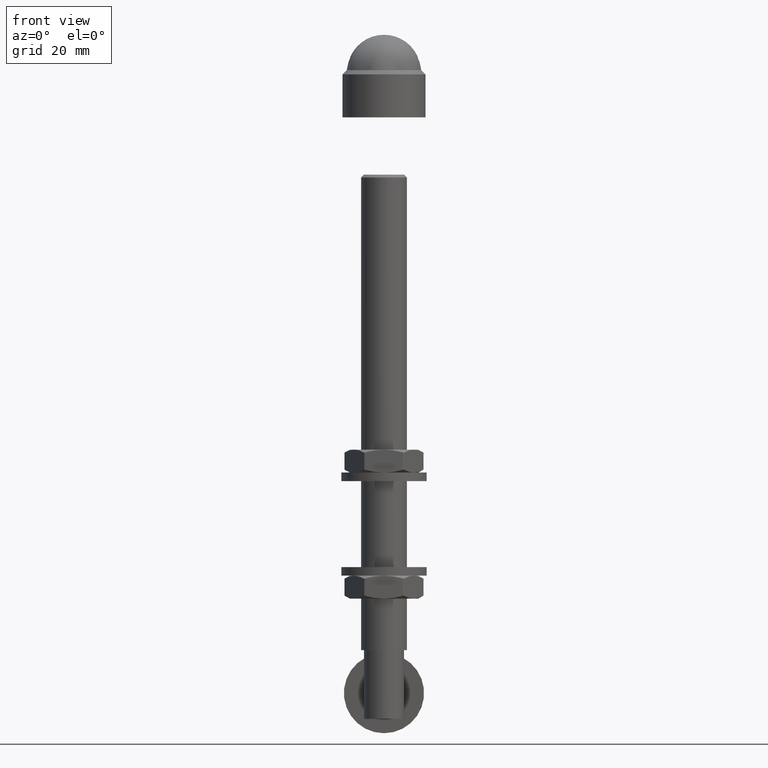
[diagram: clean part render]
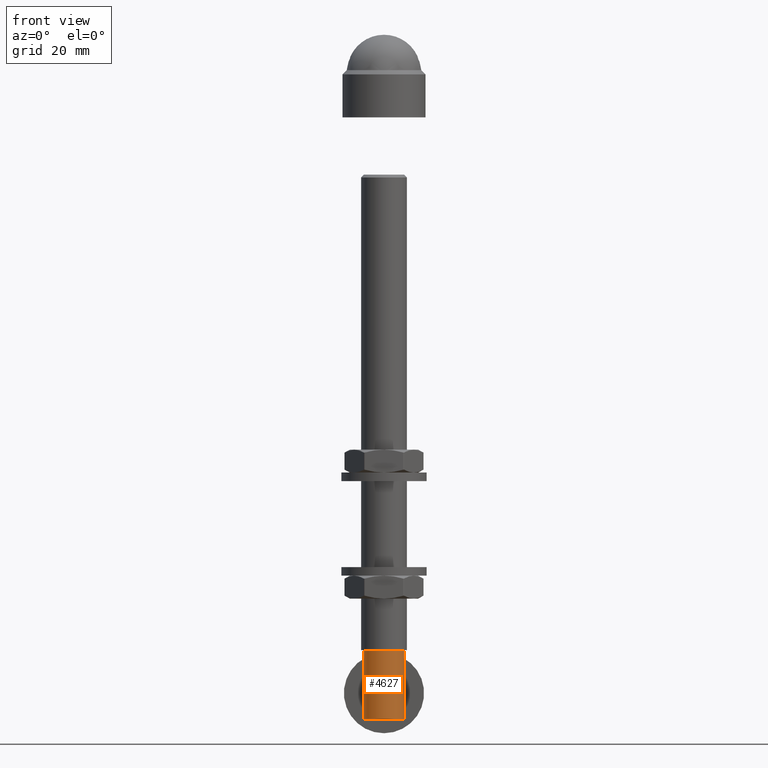
[diagram: same view with one face highlighted and labeled with its STEP entity id]
A machine part, front view. The second image highlights one B-rep face of the part: STEP entity #4627.
In plain terms, the highlighted cylindrical surface (bore or boss wall) has radius 7 mm, axis along (-0, -0, -1).
Its self-contained STEP definition (entity closure, byte-faithful):
#44 = CARTESIAN_POINT ( 'NONE',  ( 3.465496730915384571, 6.084150145637289953, -88.01410974414253019 ) ) ;
#95 = CARTESIAN_POINT ( 'NONE',  ( 3.171131831627034270, 6.242634183297534278, -83.54853436256138366 ) ) ;
#125 = EDGE_CURVE ( 'NONE', #15229, #15229, #2075, .T. ) ;
#830 = CARTESIAN_POINT ( 'NONE',  ( -3.999443614835116900, 5.744950062267894175, -86.27873732404283658 ) ) ;
#931 = CARTESIAN_POINT ( 'NONE',  ( -2.022055681176540443, 6.705432988315183529, -89.46101604660179873 ) ) ;
#1035 = CARTESIAN_POINT ( 'NONE',  ( -1.311939967957738373, 6.880407265971049569, -89.78778565999084549 ) ) ;
#1077 = B_SPLINE_CURVE_WITH_KNOTS ( 'NONE', 3,
 ( #15414, #12775, #12873, #11673, #1035, #9433, #931, #15255, #10647, #11822, #13987, #8126, #6829, #2114, #8030, #4518, #830, #5740, #14089, #9337, #2161, #10552, #9537, #2307, #9687, #4819, #11971, #11875, #13227, #3667, #10841, #2360, #3721, #14350, #5998, #13023, #12016, #9636, #4767, #1146, #13176, #10891, #95, #14407, #7286, #6043, #4672, #13123, #10741, #4866, #10791, #8394, #4714, #14459, #44, #7230, #7178, #1302, #14245, #3567, #8440, #6090, #2510, #13074, #5945, #8486 ),
 .UNSPECIFIED., .T., .F.,
 ( 4, 2, 2, 2, 2, 2, 2, 2, 2, 2, 2, 2, 2, 2, 2, 2, 2, 2, 2, 2, 2, 2, 2, 2, 2, 2, 2, 2, 2, 2, 2, 2, 4 ),
 ( 0.000000000000000000, 0.0007990056964809714047, 0.001598011392961942376, 0.002397017089442913130, 0.003196022785923884318, 0.003995028482404855072, 0.004794034178885826260, 0.005593039875366798315, 0.006392045571847769503, 0.007191051268328740691, 0.007990056964809711879, 0.008789062661290682199, 0.009588068357771654254, 0.01038707405425262631, 0.01118607975073359836, 0.01198508544721456869, 0.01278409114369553901, 0.01358309684017651106, 0.01438210253665748138, 0.01518110823313845170, 0.01598011392961942376, 0.01677911962610039581, 0.01757812532258136440, 0.01837713101906233645, 0.01917613671554330851, 0.01997514241202428403, 0.02077414810850525262, 0.02157315380498622467, 0.02237215950146719673, 0.02317116519794816878, 0.02397017089442913737, 0.02476917659091010943, 0.02556818228739107801 ),
 .UNSPECIFIED. ) ;
#1119 = DIRECTION ( 'NONE',  ( -0.000000000000000000, -0.000000000000000000, -1.000000000000000000 ) ) ;
#1146 = CARTESIAN_POINT ( 'NONE',  ( 2.446741235970653516, 6.562430806389047966, -82.82489148212121677 ) ) ;
#1302 = CARTESIAN_POINT ( 'NONE',  ( 2.655232850110495590, 6.479879996912050188, -89.00257667583488796 ) ) ;
#1311 = EDGE_LOOP ( 'NONE', ( #2169 ) ) ;
#1792 = CYLINDRICAL_SURFACE ( 'NONE', #4757, 7.000000000000000000 ) ;
#2075 = CIRCLE ( 'NONE', #4061, 7.000000000000000000 ) ;
#2114 = CARTESIAN_POINT ( 'NONE',  ( -3.785159115768998994, 5.889536386675974455, -87.31895963299943730 ) ) ;
#2124 = AXIS2_PLACEMENT_3D ( 'NONE', #15278, #1119, #7108 ) ;
#2161 = CARTESIAN_POINT ( 'NONE',  ( -3.790594767666125797, 5.886031279895538759, -84.69648865057092735 ) ) ;
#2169 = ORIENTED_EDGE ( 'NONE', *, *, #11576, .F. ) ;
#2307 = CARTESIAN_POINT ( 'NONE',  ( -3.179287314189500613, 6.238484899529407102, -83.55899270403125456 ) ) ;
#2360 = CARTESIAN_POINT ( 'NONE',  ( -0.5491769909858815746, 6.983287500370875200, -82.02907446024954652 ) ) ;
#2510 = CARTESIAN_POINT ( 'NONE',  ( 1.061707577236599365, 6.923975253457641976, -89.86566513763720820 ) ) ;
#3567 = CARTESIAN_POINT ( 'NONE',  ( 2.029369198334328939, 6.703140789403442490, -89.45653843126565619 ) ) ;
#3667 = CARTESIAN_POINT ( 'NONE',  ( -1.323173428591819301, 6.878262490325234069, -82.21609347856984584 ) ) ;
#3721 = CARTESIAN_POINT ( 'NONE',  ( -0.2846331047929209768, 6.999449109124904034, -82.00096406289520701 ) ) ;
#4061 = AXIS2_PLACEMENT_3D ( 'NONE', #8117, #14233, #8224 ) ;
#4518 = CARTESIAN_POINT ( 'NONE',  ( -3.971665246372906743, 5.764547340233397321, -86.54416800516371211 ) ) ;
#4627 = ADVANCED_FACE ( 'NONE', ( #15116, #6865, #11895 ), #1792, .T. ) ;
#4672 = CARTESIAN_POINT ( 'NONE',  ( 3.864166430782680184, 5.837155601370209723, -84.93300897393532978 ) ) ;
#4714 = CARTESIAN_POINT ( 'NONE',  ( 3.790813261557226088, 5.885893089144582646, -87.30293960110972762 ) ) ;
#4757 = AXIS2_PLACEMENT_3D ( 'NONE', #9663, #10865, #9560 ) ;
#4767 = CARTESIAN_POINT ( 'NONE',  ( 2.014274552708803068, 6.707811773652639253, -82.53437526520610845 ) ) ;
#4819 = CARTESIAN_POINT ( 'NONE',  ( -2.657522154787642421, 6.478918556126258999, -82.99952253151592174 ) ) ;
#4866 = CARTESIAN_POINT ( 'NONE',  ( 4.000647078354252706, 5.744112081017400229, -86.26017996461168025 ) ) ;
#5482 = VERTEX_POINT ( 'NONE', #8131 ) ;
#5740 = CARTESIAN_POINT ( 'NONE',  ( -4.000539974134967203, 5.744186657965203224, -85.73746687940733580 ) ) ;
#5945 = CARTESIAN_POINT ( 'NONE',  ( 0.2705406686418486695, 6.999999999999977796, -90.00000000000002842 ) ) ;
#5998 = CARTESIAN_POINT ( 'NONE',  ( 0.5228583303566838314, 6.985369309579236408, -82.02542683755729058 ) ) ;
#6043 = CARTESIAN_POINT ( 'NONE',  ( 3.783861131292851621, 5.890385245673777526, -84.67714615934391986 ) ) ;
#6090 = CARTESIAN_POINT ( 'NONE',  ( 1.317049407711497810, 6.879489774732941321, -89.78614146288916231 ) ) ;
#6829 = CARTESIAN_POINT ( 'NONE',  ( -3.583455188024556204, 6.014392512722243289, -87.79608823853149602 ) ) ;
#6865 = FACE_OUTER_BOUND ( 'NONE', #11962, .T. ) ;
#7108 = DIRECTION ( 'NONE',  ( -1.000000000000000000, 0.000000000000000000, 0.000000000000000000 ) ) ;
#7178 = CARTESIAN_POINT ( 'NONE',  ( 3.016824892635580735, 6.319641906774557505, -88.63903310887678799 ) ) ;
#7230 = CARTESIAN_POINT ( 'NONE',  ( 3.178647248655310786, 6.238810163425354993, -88.44182458871456731 ) ) ;
#7286 = CARTESIAN_POINT ( 'NONE',  ( 3.580865388808711636, 6.015949340760108122, -84.19862541044926729 ) ) ;
#8030 = CARTESIAN_POINT ( 'NONE',  ( -3.865148016967322686, 5.836502520685814765, -87.06342581030547478 ) ) ;
#8117 = CARTESIAN_POINT ( 'NONE',  ( 0.000000000000000000, -2.143131898507867933E-14, -71.00000000000001421 ) ) ;
#8126 = CARTESIAN_POINT ( 'NONE',  ( -3.461356977543925240, 6.086500982246582758, -88.02110014605293031 ) ) ;
#8131 = CARTESIAN_POINT ( 'NONE',  ( -7.000000000000000000, -2.143131898507867933E-14, -95.00000000000000000 ) ) ;
#8224 = DIRECTION ( 'NONE',  ( -1.000000000000000000, 0.000000000000000000, 0.000000000000000000 ) ) ;
#8394 = CARTESIAN_POINT ( 'NONE',  ( 3.869647227635446995, 5.833508193050176871, -87.04719908314736188 ) ) ;
#8440 = CARTESIAN_POINT ( 'NONE',  ( 1.802519772424410860, 6.768524298030359709, -89.58055984301074659 ) ) ;
#8486 = CARTESIAN_POINT ( 'NONE',  ( -2.168404344971008868E-16, 6.999999999999979572, -90.00000000000002842 ) ) ;
#8668 = VERTEX_POINT ( 'NONE', #15318 ) ;
#8752 = EDGE_LOOP ( 'NONE', ( #13698 ) ) ;
#9337 = CARTESIAN_POINT ( 'NONE',  ( -3.869446614669384221, 5.833640278209678343, -84.95227208199284519 ) ) ;
#9433 = CARTESIAN_POINT ( 'NONE',  ( -1.794343272404068212, 6.770636812437246022, -89.58452771035958051 ) ) ;
#9537 = CARTESIAN_POINT ( 'NONE',  ( -3.466180035464691667, 6.083761799213441179, -83.98704684433917578 ) ) ;
#9560 = DIRECTION ( 'NONE',  ( -1.000000000000000000, 0.000000000000000000, 0.000000000000000000 ) ) ;
#9636 = CARTESIAN_POINT ( 'NONE',  ( 1.785447500634143037, 6.773011609778705200, -82.41099820103782747 ) ) ;
#9663 = CARTESIAN_POINT ( 'NONE',  ( 0.000000000000000000, -2.143131898507867933E-14, -95.00000000000000000 ) ) ;
#9687 = CARTESIAN_POINT ( 'NONE',  ( -3.017700845965323619, 6.319200207650054857, -83.36205181128822517 ) ) ;
#10452 = CARTESIAN_POINT ( 'NONE',  ( -7.000000000000000000, -2.143131898507867933E-14, -71.00000000000001421 ) ) ;
#10552 = CARTESIAN_POINT ( 'NONE',  ( -3.589698551145330985, 6.010660299207702728, -84.21623576595632699 ) ) ;
#10647 = CARTESIAN_POINT ( 'NONE',  ( -2.650280939395420976, 6.481879717041319822, -89.00681467800163205 ) ) ;
#10741 = CARTESIAN_POINT ( 'NONE',  ( 3.999329083334540957, 5.745029810891234767, -85.72029025271855573 ) ) ;
#10779 = CIRCLE ( 'NONE', #2124, 7.000000000000000000 ) ;
#10791 = CARTESIAN_POINT ( 'NONE',  ( 3.974256550931846821, 5.762748682018467683, -86.52543358616159708 ) ) ;
#10841 = CARTESIAN_POINT ( 'NONE',  ( -1.066844750116262786, 6.923130936174310968, -82.13584585079478018 ) ) ;
#10865 = DIRECTION ( 'NONE',  ( -0.000000000000000000, -0.000000000000000000, -1.000000000000000000 ) ) ;
#10891 = CARTESIAN_POINT ( 'NONE',  ( 3.005842074267742525, 6.324867630449833911, -83.34856333887601920 ) ) ;
#11576 = EDGE_CURVE ( 'NONE', #8668, #8668, #1077, .T. ) ;
#11673 = CARTESIAN_POINT ( 'NONE',  ( -1.054991367403715463, 6.924979789224064319, -89.86745904119233330 ) ) ;
#11822 = CARTESIAN_POINT ( 'NONE',  ( -3.010381281458128555, 6.322686000756384317, -88.64622903502605311 ) ) ;
#11875 = CARTESIAN_POINT ( 'NONE',  ( -2.031960901279969089, 6.702351392860849799, -82.54498802056892259 ) ) ;
#11895 = FACE_OUTER_BOUND ( 'NONE', #8752, .T. ) ;
#11962 = EDGE_LOOP ( 'NONE', ( #13806 ) ) ;
#11971 = CARTESIAN_POINT ( 'NONE',  ( -2.457164010700105372, 6.558408673011649093, -82.83324805094197529 ) ) ;
#12016 = CARTESIAN_POINT ( 'NONE',  ( 1.301636396672599005, 6.882387066605232917, -82.20862829818396733 ) ) ;
#12775 = CARTESIAN_POINT ( 'NONE',  ( -0.2705406686418500573, 6.999999999999981348, -90.00000000000001421 ) ) ;
#12873 = CARTESIAN_POINT ( 'NONE',  ( -0.5354927821883973538, 6.984382531525770155, -89.97284453519404224 ) ) ;
#13023 = CARTESIAN_POINT ( 'NONE',  ( 1.044025717047717183, 6.926671316511116672, -82.12951902738477372 ) ) ;
#13074 = CARTESIAN_POINT ( 'NONE',  ( 0.5411063946398315672, 6.983971660862842157, -89.97212711347272318 ) ) ;
#13123 = CARTESIAN_POINT ( 'NONE',  ( 3.971166955287595446, 5.764893817983748114, -85.45219979214850525 ) ) ;
#13176 = CARTESIAN_POINT ( 'NONE',  ( 2.644296308134412410, 6.484345314134422722, -82.98787450822889866 ) ) ;
#13227 = CARTESIAN_POINT ( 'NONE',  ( -1.805757016782128854, 6.767608470079264471, -82.42117643891242551 ) ) ;
#13698 = ORIENTED_EDGE ( 'NONE', *, *, #13842, .F. ) ;
#13806 = ORIENTED_EDGE ( 'NONE', *, *, #125, .T. ) ;
#13842 = EDGE_CURVE ( 'NONE', #5482, #5482, #10779, .T. ) ;
#13987 = CARTESIAN_POINT ( 'NONE',  ( -3.174754184936293466, 6.240786985477885906, -88.44678846482422330 ) ) ;
#14089 = CARTESIAN_POINT ( 'NONE',  ( -3.973908255338099771, 5.762987868934164482, -85.47235990286591800 ) ) ;
#14233 = DIRECTION ( 'NONE',  ( -0.000000000000000000, -0.000000000000000000, -1.000000000000000000 ) ) ;
#14245 = CARTESIAN_POINT ( 'NONE',  ( 2.454863720393139381, 6.559274342487123377, -89.16853931398398458 ) ) ;
#14350 = CARTESIAN_POINT ( 'NONE',  ( 0.2568594513143119817, 7.000523341711248015, -81.99908414823927671 ) ) ;
#14407 = CARTESIAN_POINT ( 'NONE',  ( 3.458210346609245089, 6.088295314670427949, -83.97353952328073490 ) ) ;
#14459 = CARTESIAN_POINT ( 'NONE',  ( 3.589705874549483422, 6.010658397801608821, -87.78379609887538493 ) ) ;
#15116 = FACE_BOUND ( 'NONE', #1311, .T. ) ;
#15229 = VERTEX_POINT ( 'NONE', #10452 ) ;
#15255 = CARTESIAN_POINT ( 'NONE',  ( -2.452294086362360126, 6.560319691337918258, -89.17074044453431725 ) ) ;
#15278 = CARTESIAN_POINT ( 'NONE',  ( 0.000000000000000000, -2.143131898507867933E-14, -95.00000000000000000 ) ) ;
#15318 = CARTESIAN_POINT ( 'NONE',  ( 0.000000000000000000, 6.999999999999978684, -90.00000000000001421 ) ) ;
#15414 = CARTESIAN_POINT ( 'NONE',  ( -2.168404344971008868E-16, 6.999999999999979572, -90.00000000000002842 ) ) ;